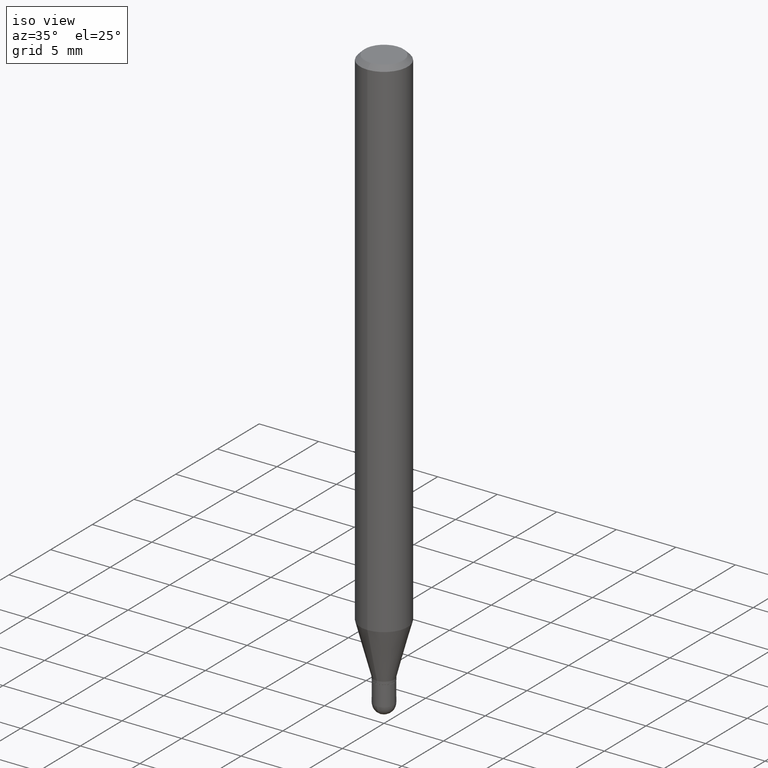
[diagram: clean part render]
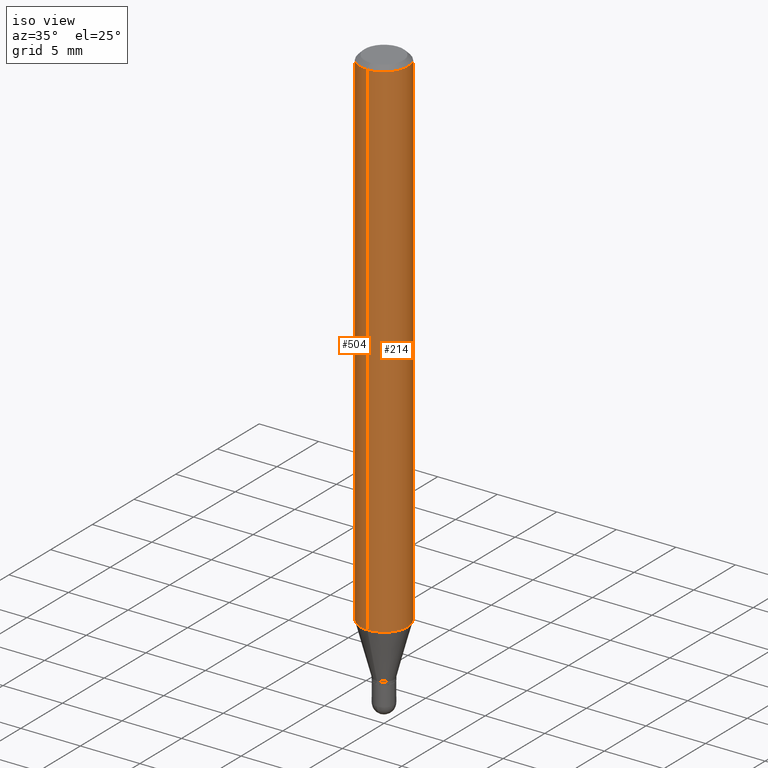
[diagram: same view with one multi-face feature highlighted, each face labeled with its STEP entity id]
A machine part, iso view. The highlighted faces form ONE feature: a constant-radius fillet chain: 2 tangent blend faces with common blend radius 2.0002 mm. The faces share edges in the B-rep.
Their STEP definitions:
[1] entity #504 (Cylinder):
#10 = CARTESIAN_POINT ( 'NONE',  ( 5.595524044111203155E-16, 0.07874999999999994504, -0.01500000000000004108 ) ) ;
#12 = VERTEX_POINT ( 'NONE', #10 ) ;
#31 = EDGE_CURVE ( 'NONE', #12, #473, #248, .T. ) ;
#37 = CIRCLE ( 'NONE', #398, 0.07875000000000000056 ) ;
#45 = CARTESIAN_POINT ( 'NONE',  ( 4.131432624267467595E-29, -5.898692496779038279E-15, -1.689438098417130441 ) ) ;
#49 = DIRECTION ( 'NONE',  ( -6.982962677686264344E-15, -1.000000000000000000, 3.469013325287953293E-15 ) ) ;
#60 = CARTESIAN_POINT ( 'NONE',  ( 3.668171649619681854E-31, -5.237267203491107326E-17, -0.01499999999999976526 ) ) ;
#63 = VECTOR ( 'NONE', #66, 39.37007874015748143 ) ;
#66 = DIRECTION ( 'NONE',  ( -2.445447766413159620E-29, 3.491511468994125769E-15, 1.000000000000000000 ) ) ;
#70 = CARTESIAN_POINT ( 'NONE',  ( -5.499083108677933457E-16, -0.07875000000000000056, 2.749565281832874225E-16 ) ) ;
#71 = AXIS2_PLACEMENT_3D ( 'NONE', #60, #208, #91 ) ;
#74 = ORIENTED_EDGE ( 'NONE', *, *, #286, .F. ) ;
#86 = FACE_OUTER_BOUND ( 'NONE', #309, .T. ) ;
#91 = DIRECTION ( 'NONE',  ( -6.982962677686264344E-15, -1.000000000000000000, 3.496114991891765576E-15 ) ) ;
#120 = CYLINDRICAL_SURFACE ( 'NONE', #439, 0.07875000000000000056 ) ;
#121 = VERTEX_POINT ( 'NONE', #132 ) ;
#126 = ORIENTED_EDGE ( 'NONE', *, *, #31, .F. ) ;
#132 = CARTESIAN_POINT ( 'NONE',  ( -5.499083108677522263E-16, -0.07875000000000592637, -1.689438098417130218 ) ) ;
#143 = VERTEX_POINT ( 'NONE', #387 ) ;
#160 = CARTESIAN_POINT ( 'NONE',  ( 0.000000000000000000, 0.000000000000000000, 0.000000000000000000 ) ) ;
#183 = VECTOR ( 'NONE', #263, 39.37007874015748143 ) ;
#192 = CARTESIAN_POINT ( 'NONE',  ( -5.499083108677930499E-16, -0.07875000000000004219, -0.01499999999999948944 ) ) ;
#197 = DIRECTION ( 'NONE',  ( -2.445447766413159620E-29, 3.491511468994126163E-15, 1.000000000000000000 ) ) ;
#208 = DIRECTION ( 'NONE',  ( -2.445447766413159620E-29, 3.491511468994126163E-15, 1.000000000000000000 ) ) ;
#233 = LINE ( 'NONE', #70, #63 ) ;
#246 = DIRECTION ( 'NONE',  ( -2.445447766413159620E-29, 3.491511468994126163E-15, 1.000000000000000000 ) ) ;
#247 = EDGE_CURVE ( 'NONE', #121, #473, #233, .T. ) ;
#248 = CIRCLE ( 'NONE', #71, 0.07875000000000000056 ) ;
#263 = DIRECTION ( 'NONE',  ( -2.445447766413159620E-29, 3.491511468994125769E-15, 1.000000000000000000 ) ) ;
#284 = DIRECTION ( 'NONE',  ( -6.982962677686264344E-15, -1.000000000000000000, 3.491511468994126163E-15 ) ) ;
#286 = EDGE_CURVE ( 'NONE', #143, #12, #402, .T. ) ;
#309 = EDGE_LOOP ( 'NONE', ( #74, #438, #313, #126 ) ) ;
#313 = ORIENTED_EDGE ( 'NONE', *, *, #247, .T. ) ;
#387 = CARTESIAN_POINT ( 'NONE',  ( 5.595524044111199211E-16, 0.07874999999999408862, -1.689438098417130885 ) ) ;
#392 = CARTESIAN_POINT ( 'NONE',  ( 5.595524044110787031E-16, 0.07875000000000000056, -2.749565281832874225E-16 ) ) ;
#398 = AXIS2_PLACEMENT_3D ( 'NONE', #45, #197, #49 ) ;
#402 = LINE ( 'NONE', #392, #183 ) ;
#438 = ORIENTED_EDGE ( 'NONE', *, *, #502, .T. ) ;
#439 = AXIS2_PLACEMENT_3D ( 'NONE', #160, #246, #284 ) ;
#473 = VERTEX_POINT ( 'NONE', #192 ) ;
#502 = EDGE_CURVE ( 'NONE', #143, #121, #37, .T. ) ;
#504 = ADVANCED_FACE ( 'NONE', ( #86 ), #120, .T. ) ;
[2] entity #214 (Cylinder):
#10 = CARTESIAN_POINT ( 'NONE',  ( 5.595524044111203155E-16, 0.07874999999999994504, -0.01500000000000004108 ) ) ;
#12 = VERTEX_POINT ( 'NONE', #10 ) ;
#22 = AXIS2_PLACEMENT_3D ( 'NONE', #481, #239, #287 ) ;
#29 = CIRCLE ( 'NONE', #349, 0.07875000000000000056 ) ;
#38 = DIRECTION ( 'NONE',  ( -2.445447766413159620E-29, 3.491511468994126163E-15, 1.000000000000000000 ) ) ;
#63 = VECTOR ( 'NONE', #66, 39.37007874015748143 ) ;
#66 = DIRECTION ( 'NONE',  ( -2.445447766413159620E-29, 3.491511468994125769E-15, 1.000000000000000000 ) ) ;
#70 = CARTESIAN_POINT ( 'NONE',  ( -5.499083108677933457E-16, -0.07875000000000000056, 2.749565281832874225E-16 ) ) ;
#102 = FACE_OUTER_BOUND ( 'NONE', #109, .T. ) ;
#109 = EDGE_LOOP ( 'NONE', ( #442, #154, #190, #395 ) ) ;
#121 = VERTEX_POINT ( 'NONE', #132 ) ;
#122 = CIRCLE ( 'NONE', #22, 0.07875000000000000056 ) ;
#132 = CARTESIAN_POINT ( 'NONE',  ( -5.499083108677522263E-16, -0.07875000000000592637, -1.689438098417130218 ) ) ;
#142 = CYLINDRICAL_SURFACE ( 'NONE', #493, 0.07875000000000000056 ) ;
#143 = VERTEX_POINT ( 'NONE', #387 ) ;
#150 = DIRECTION ( 'NONE',  ( -6.982962677686264344E-15, -1.000000000000000000, 3.491511468994126163E-15 ) ) ;
#154 = ORIENTED_EDGE ( 'NONE', *, *, #286, .T. ) ;
#183 = VECTOR ( 'NONE', #263, 39.37007874015748143 ) ;
#184 = DIRECTION ( 'NONE',  ( -6.982962677686264344E-15, -1.000000000000000000, 3.496114991891765576E-15 ) ) ;
#186 = DIRECTION ( 'NONE',  ( -2.445447766413159620E-29, 3.491511468994126163E-15, 1.000000000000000000 ) ) ;
#190 = ORIENTED_EDGE ( 'NONE', *, *, #271, .F. ) ;
#192 = CARTESIAN_POINT ( 'NONE',  ( -5.499083108677930499E-16, -0.07875000000000004219, -0.01499999999999948944 ) ) ;
#214 = ADVANCED_FACE ( 'NONE', ( #102 ), #142, .T. ) ;
#233 = LINE ( 'NONE', #70, #63 ) ;
#239 = DIRECTION ( 'NONE',  ( -2.445447766413159620E-29, 3.491511468994126163E-15, 1.000000000000000000 ) ) ;
#247 = EDGE_CURVE ( 'NONE', #121, #473, #233, .T. ) ;
#263 = DIRECTION ( 'NONE',  ( -2.445447766413159620E-29, 3.491511468994125769E-15, 1.000000000000000000 ) ) ;
#271 = EDGE_CURVE ( 'NONE', #473, #12, #29, .T. ) ;
#286 = EDGE_CURVE ( 'NONE', #143, #12, #402, .T. ) ;
#287 = DIRECTION ( 'NONE',  ( -6.982962677686264344E-15, -1.000000000000000000, 3.469013325287953293E-15 ) ) ;
#349 = AXIS2_PLACEMENT_3D ( 'NONE', #465, #186, #184 ) ;
#387 = CARTESIAN_POINT ( 'NONE',  ( 5.595524044111199211E-16, 0.07874999999999408862, -1.689438098417130885 ) ) ;
#392 = CARTESIAN_POINT ( 'NONE',  ( 5.595524044110787031E-16, 0.07875000000000000056, -2.749565281832874225E-16 ) ) ;
#395 = ORIENTED_EDGE ( 'NONE', *, *, #247, .F. ) ;
#402 = LINE ( 'NONE', #392, #183 ) ;
#442 = ORIENTED_EDGE ( 'NONE', *, *, #497, .T. ) ;
#465 = CARTESIAN_POINT ( 'NONE',  ( 3.668171649619681854E-31, -5.237267203491107326E-17, -0.01499999999999976526 ) ) ;
#473 = VERTEX_POINT ( 'NONE', #192 ) ;
#481 = CARTESIAN_POINT ( 'NONE',  ( 4.131432624267467595E-29, -5.898692496779038279E-15, -1.689438098417130441 ) ) ;
#493 = AXIS2_PLACEMENT_3D ( 'NONE', #507, #38, #150 ) ;
#497 = EDGE_CURVE ( 'NONE', #121, #143, #122, .T. ) ;
#507 = CARTESIAN_POINT ( 'NONE',  ( 0.000000000000000000, 0.000000000000000000, 0.000000000000000000 ) ) ;